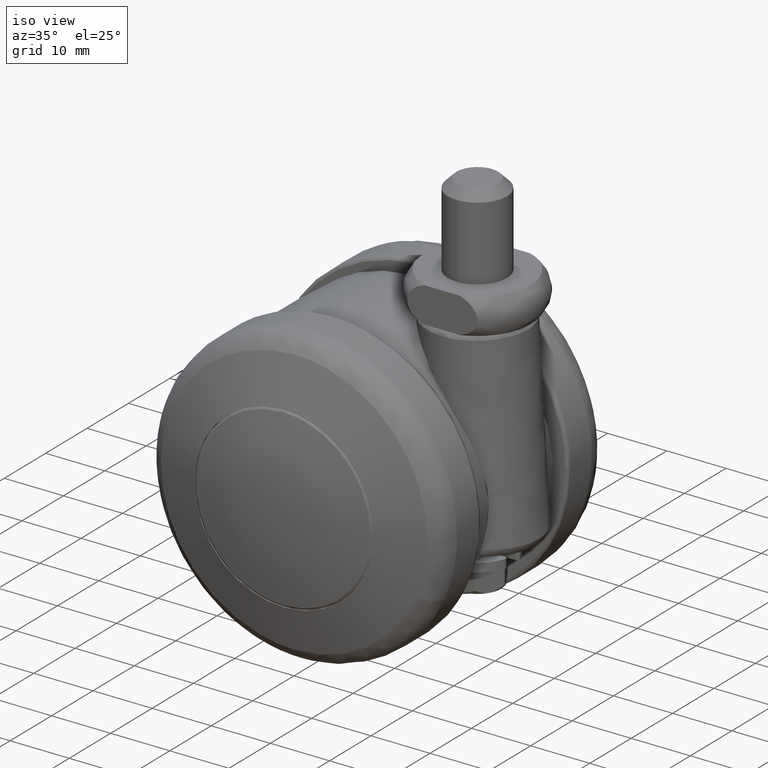
[diagram: clean part render]
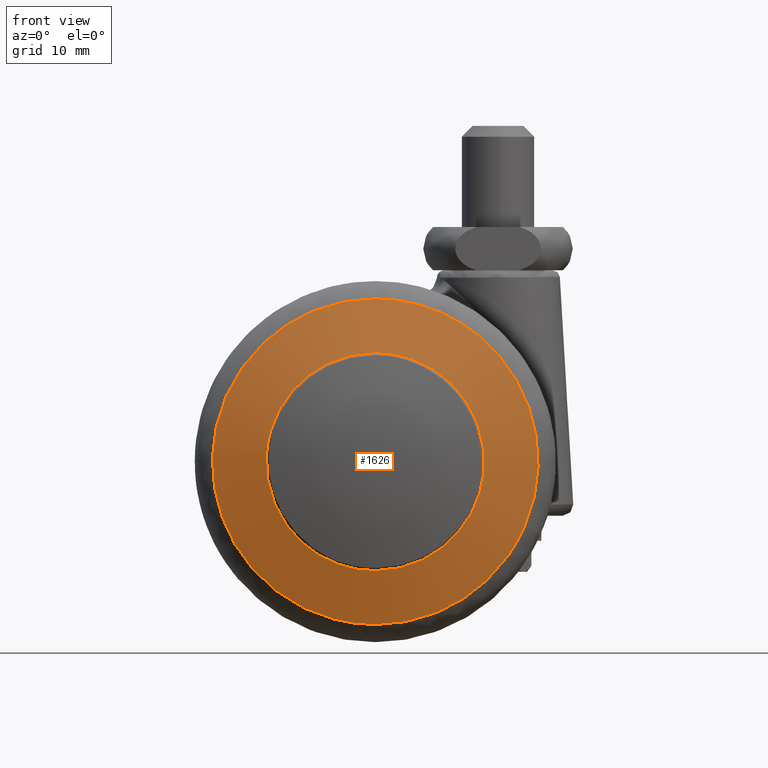
[diagram: tour spotlight — one face highlighted and labeled with its STEP entity id]
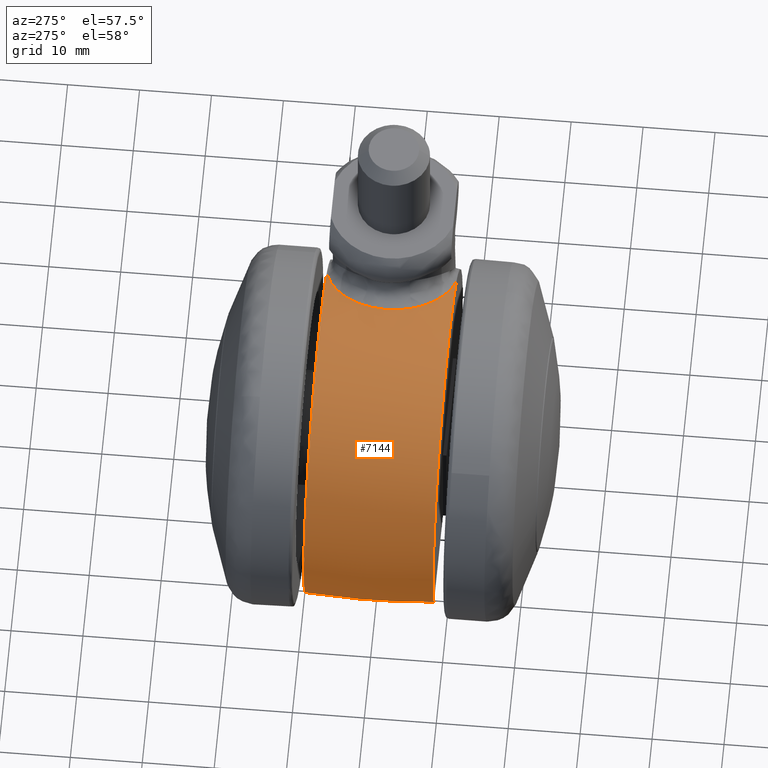
[diagram: tour spotlight — one face highlighted and labeled with its STEP entity id]
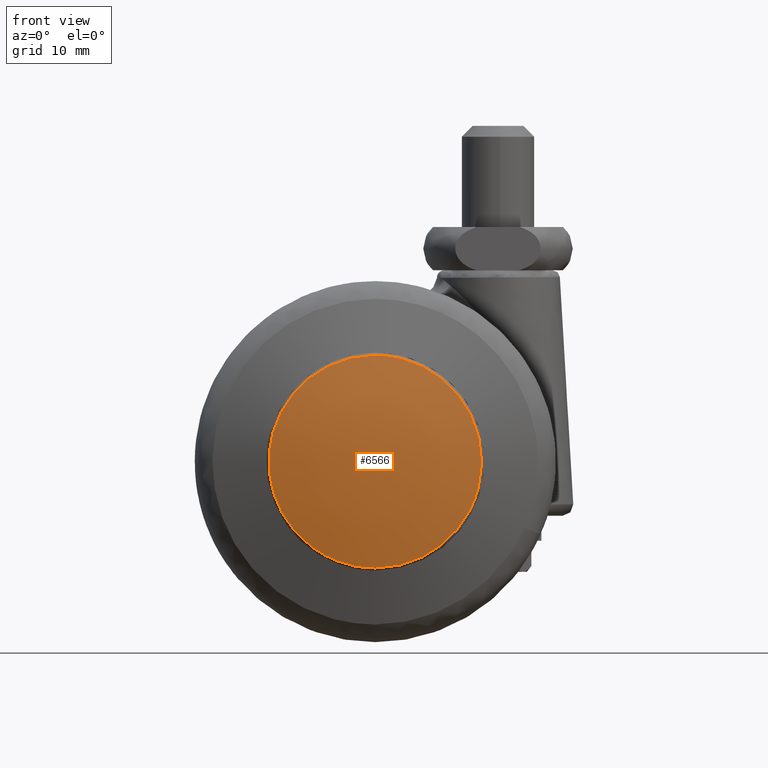
[diagram: tour spotlight — one face highlighted and labeled with its STEP entity id]
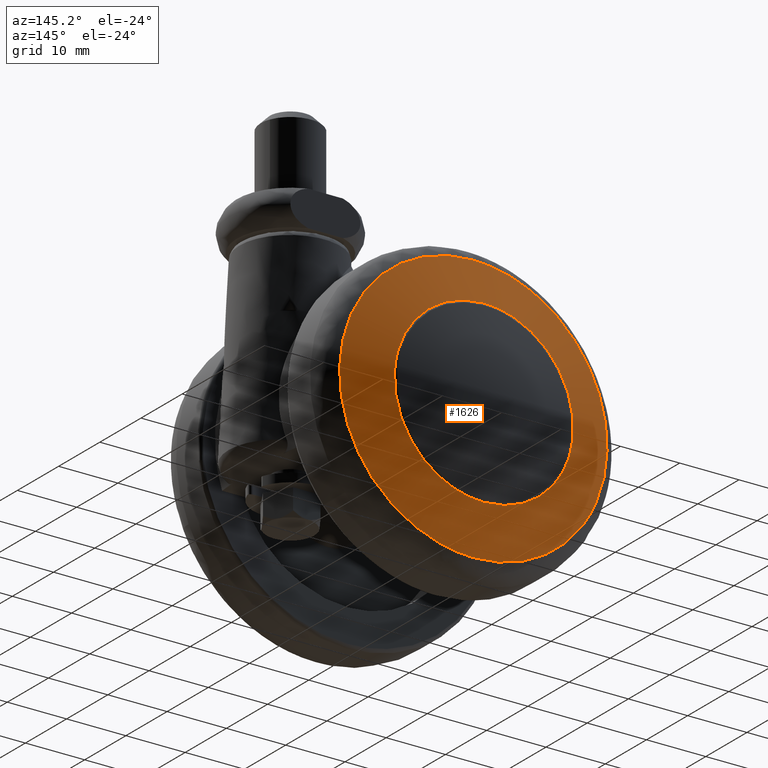
[diagram: tour spotlight — one face highlighted and labeled with its STEP entity id]
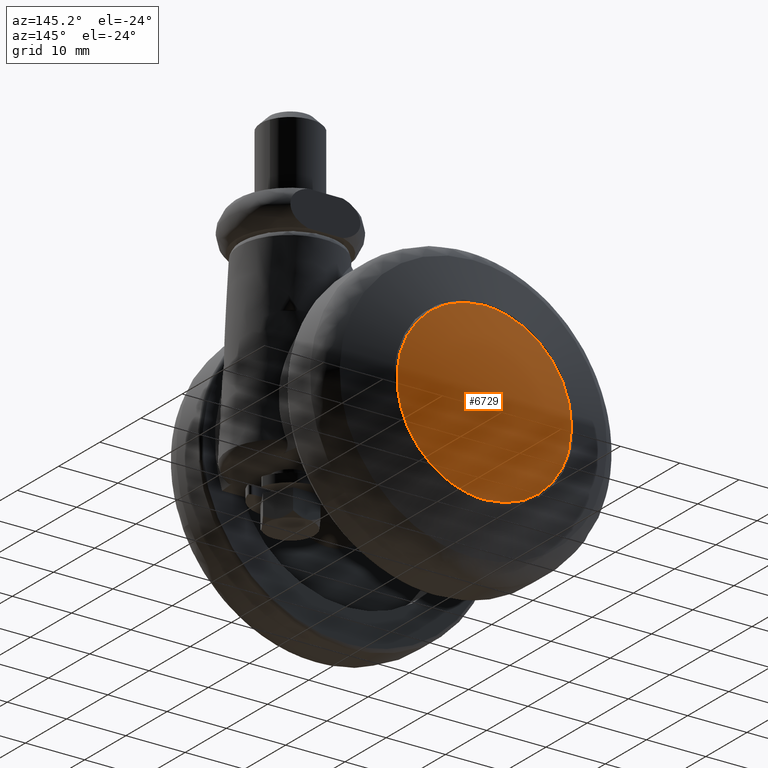
[diagram: tour spotlight — one face highlighted and labeled with its STEP entity id]
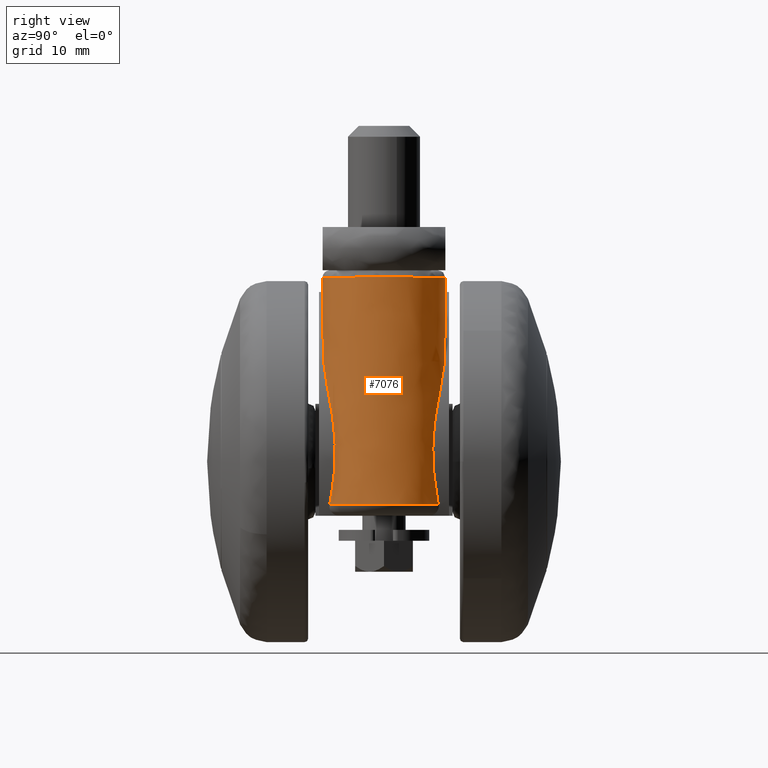
[diagram: tour spotlight — one face highlighted and labeled with its STEP entity id]
A machine part: a face-by-face anatomy tour. The part has 124 B-rep faces; the first image is the clean iso view, then the 6 largest visible faces are spotlighted one at a time (largest first), each with its STEP entity span.

Face 1 — front view, entity #1626. In plain terms, the highlighted face is a freeform B-spline surface patch.
Definition (entity closure, byte-faithful):
#671=CARTESIAN_POINT('',(14.994446135850531,-22.500000000000000,-1.782297696430476));
#672=VERTEX_POINT('',#671);
#678=CARTESIAN_POINT('',(0.0,-22.500000000000000,15.100000000000000));
#679=VERTEX_POINT('',#678);
#680=CARTESIAN_POINT('',(14.994446135850534,-22.499999999999996,-1.782297696430475));
#681=CARTESIAN_POINT('',(15.099999999999998,-22.499999999999996,-0.894274481564592));
#682=CARTESIAN_POINT('',(15.100000000000000,-22.500000000000000,1.789254E-015));
#683=CARTESIAN_POINT('',(15.100000000000005,-22.500000000000004,15.100000000000005));
#684=CARTESIAN_POINT('',(0.0,-22.500000000000000,15.100000000000000));
#692=(BOUNDED_CURVE()B_SPLINE_CURVE(2,(#680,#681,#682,#683,#684),.UNSPECIFIED.,.F.,.U.)B_SPLINE_CURVE_WITH_KNOTS((3,2,3),(0.229562690448439,0.250000000000000,0.500000000000000),.UNSPECIFIED.)CURVE()GEOMETRIC_REPRESENTATION_ITEM()RATIONAL_B_SPLINE_CURVE((0.956027179385483,0.976056202486226,1.0,0.707106781186547,1.0))REPRESENTATION_ITEM(''));
#693=EDGE_CURVE('',#672,#679,#692,.T.);
#695=CARTESIAN_POINT('',(-15.071836945563520,-22.500000000000000,0.921808594965005));
#696=VERTEX_POINT('',#695);
#697=CARTESIAN_POINT('',(0.0,-22.500000000000000,15.100000000000000));
#698=CARTESIAN_POINT('',(-14.204684604072089,-22.500000000000007,15.100000000000003));
#699=CARTESIAN_POINT('',(-15.071836945563517,-22.499999999999996,0.921808594965005));
#707=(BOUNDED_CURVE()B_SPLINE_CURVE(2,(#697,#698,#699),.UNSPECIFIED.,.F.,.U.)B_SPLINE_CURVE_WITH_KNOTS((3,3),(0.500000000000000,0.739333241030990),.UNSPECIFIED.)CURVE()GEOMETRIC_REPRESENTATION_ITEM()RATIONAL_B_SPLINE_CURVE((1.0,0.719603666661510,0.976072639171872))REPRESENTATION_ITEM(''));
#708=EDGE_CURVE('',#679,#696,#707,.T.);
#782=CARTESIAN_POINT('',(0.0,-22.500000000000000,-15.100000000000000));
#783=VERTEX_POINT('',#782);
#784=CARTESIAN_POINT('',(-15.071836945563517,-22.499999999999996,0.921808594965005));
#785=CARTESIAN_POINT('',(-15.100000000000000,-22.499999999999996,0.461334515664197));
#786=CARTESIAN_POINT('',(-15.100000000000000,-22.500000000000000,1.789254E-015));
#787=CARTESIAN_POINT('',(-15.100000000000005,-22.500000000000004,-15.100000000000005));
#788=CARTESIAN_POINT('',(0.0,-22.500000000000000,-15.100000000000000));
#796=(BOUNDED_CURVE()B_SPLINE_CURVE(2,(#784,#785,#786,#787,#788),.UNSPECIFIED.,.F.,.U.)B_SPLINE_CURVE_WITH_KNOTS((3,2,3),(0.739333241030990,0.750000000000000,1.0),.UNSPECIFIED.)CURVE()GEOMETRIC_REPRESENTATION_ITEM()RATIONAL_B_SPLINE_CURVE((0.976072639171872,0.987503114525037,1.0,0.707106781186547,1.0))REPRESENTATION_ITEM(''));
#797=EDGE_CURVE('',#696,#783,#796,.T.);
#799=CARTESIAN_POINT('',(0.0,-22.500000000000000,-15.100000000000000));
#800=CARTESIAN_POINT('',(13.411452677995506,-22.500000000000007,-15.100000000000005));
#801=CARTESIAN_POINT('',(14.994446135850534,-22.499999999999996,-1.782297696430475));
#809=(BOUNDED_CURVE()B_SPLINE_CURVE(2,(#799,#800,#801),.UNSPECIFIED.,.F.,.U.)B_SPLINE_CURVE_WITH_KNOTS((3,3),(0.0,0.229562690448439),.UNSPECIFIED.)CURVE()GEOMETRIC_REPRESENTATION_ITEM()RATIONAL_B_SPLINE_CURVE((1.0,0.731050578700322,0.956027179385483))REPRESENTATION_ITEM(''));
#810=EDGE_CURVE('',#783,#672,#809,.T.);
#1243=CARTESIAN_POINT('',(9.087749509929518,-19.934754244706831,20.643707274505701));
#1244=VERTEX_POINT('',#1243);
#1245=CARTESIAN_POINT('',(0.0,-19.934754434471500,22.555483695890050));
#1246=VERTEX_POINT('',#1245);
#1247=CARTESIAN_POINT('',(9.087749509929518,-19.934754244706827,20.643707274505697));
#1248=CARTESIAN_POINT('',(4.744963543888343,-19.934754434471508,22.555483695890050));
#1249=CARTESIAN_POINT('',(0.0,-19.934754434471500,22.555483695890050));
#1257=(BOUNDED_CURVE()B_SPLINE_CURVE(2,(#1247,#1248,#1249),.UNSPECIFIED.,.F.,.U.)B_SPLINE_CURVE_WITH_KNOTS((3,3),(0.431585009860542,0.500000000000000),.UNSPECIFIED.)CURVE()GEOMETRIC_REPRESENTATION_ITEM()RATIONAL_B_SPLINE_CURVE((0.883563120517182,0.919846853291854,1.0))REPRESENTATION_ITEM(''));
#1258=EDGE_CURVE('',#1244,#1246,#1257,.T.);
#1278=CARTESIAN_POINT('',(20.643707274505690,-19.934754244706831,-9.087749509929516));
#1279=VERTEX_POINT('',#1278);
#1293=CARTESIAN_POINT('',(0.0,-19.934754434471500,-22.555483695890040));
#1294=VERTEX_POINT('',#1293);
#1295=CARTESIAN_POINT('',(0.0,-19.934754434471500,-22.555483695890040));
#1296=CARTESIAN_POINT('',(14.714956622339063,-19.934754434471497,-22.555483695890043));
#1297=CARTESIAN_POINT('',(20.643707274505697,-19.934754244706827,-9.087749509929516));
#1305=(BOUNDED_CURVE()B_SPLINE_CURVE(2,(#1295,#1296,#1297),.UNSPECIFIED.,.F.,.U.)B_SPLINE_CURVE_WITH_KNOTS((3,3),(0.0,0.181585009860541),.UNSPECIFIED.)CURVE()GEOMETRIC_REPRESENTATION_ITEM()RATIONAL_B_SPLINE_CURVE((1.0,0.787259927894694,0.883563120517182))REPRESENTATION_ITEM(''));
#1306=EDGE_CURVE('',#1294,#1279,#1305,.T.);
#1308=CARTESIAN_POINT('',(0.0,-19.934754434471500,22.555483695890050));
#1309=CARTESIAN_POINT('',(-22.555483695890047,-19.934754434471508,22.555483695890047));
#1310=CARTESIAN_POINT('',(-22.555483695890050,-19.934754434471500,1.789254E-015));
#1311=CARTESIAN_POINT('',(-22.555483695890047,-19.934754434471508,-22.555483695890047));
#1312=CARTESIAN_POINT('',(0.0,-19.934754434471500,-22.555483695890040));
#1320=(BOUNDED_CURVE()B_SPLINE_CURVE(2,(#1308,#1309,#1310,#1311,#1312),.UNSPECIFIED.,.F.,.U.)B_SPLINE_CURVE_WITH_KNOTS((3,2,3),(0.500000000000000,0.750000000000000,1.0),.UNSPECIFIED.)CURVE()GEOMETRIC_REPRESENTATION_ITEM()RATIONAL_B_SPLINE_CURVE((1.0,0.707106781186547,1.0,0.707106781186547,1.0))REPRESENTATION_ITEM(''));
#1321=EDGE_CURVE('',#1246,#1294,#1320,.T.);
#1343=CARTESIAN_POINT('',(20.643707274505697,-19.934754244706827,-9.087749509929516));
#1344=CARTESIAN_POINT('',(22.555483695890050,-19.934754434471508,-4.744963543888342));
#1345=CARTESIAN_POINT('',(22.555483695890050,-19.934754434471500,1.789254E-015));
#1346=CARTESIAN_POINT('',(22.555483695890040,-19.934754434471504,14.714956622339097));
#1347=CARTESIAN_POINT('',(9.087749509929518,-19.934754244706831,20.643707274505704));
#1355=(BOUNDED_CURVE()B_SPLINE_CURVE(2,(#1343,#1344,#1345,#1346,#1347),.UNSPECIFIED.,.F.,.U.)B_SPLINE_CURVE_WITH_KNOTS((3,2,3),(0.181585009860542,0.250000000000000,0.431585009860542),.UNSPECIFIED.)CURVE()GEOMETRIC_REPRESENTATION_ITEM()RATIONAL_B_SPLINE_CURVE((0.883563120517182,0.919846853291854,1.0,0.787259927894694,0.883563120517183))REPRESENTATION_ITEM(''));
#1356=EDGE_CURVE('',#1279,#1244,#1355,.T.);
#1590=CARTESIAN_POINT('',(-23.496149942089705,-14.038550127731490,-23.496159194671790));
#1591=CARTESIAN_POINT('',(-12.302814989209493,-19.022279892763255,-24.605639667904818));
#1592=CARTESIAN_POINT('',(12.302718326948122,-19.022279892763233,-24.605639667904818));
#1593=CARTESIAN_POINT('',(23.495981982561212,-14.038624909848737,-23.496175842705028));
#1594=CARTESIAN_POINT('',(-24.605630893487540,-19.022284003206046,-12.302820291486842));
#1595=CARTESIAN_POINT('',(-12.912541177236481,-24.500000000000000,-12.912546262084330));
#1596=CARTESIAN_POINT('',(12.912439724403830,-24.499999999999972,-12.912546262084330));
#1597=CARTESIAN_POINT('',(24.605455826190866,-19.022366014444689,-12.302829420178824));
#1598=CARTESIAN_POINT('',(-24.605630893487540,-19.022284003206046,12.302820621074964));
#1599=CARTESIAN_POINT('',(-12.912541177236481,-24.500000000000000,12.912546608006791));
#1600=CARTESIAN_POINT('',(12.912439724403830,-24.499999999999979,12.912546608006791));
#1601=CARTESIAN_POINT('',(24.605455826190866,-19.022366014444689,12.302829749767190));
#1602=CARTESIAN_POINT('',(-23.496149885324918,-14.038549872746909,23.496159767360616));
#1603=CARTESIAN_POINT('',(-12.302814958083411,-19.022279613129580,24.605640264828839));
#1604=CARTESIAN_POINT('',(12.302718295822286,-19.022279613129559,24.605640264828839));
#1605=CARTESIAN_POINT('',(23.495981925796809,-14.038624654863803,23.496176415394217));
#1613=(BOUNDED_SURFACE()B_SPLINE_SURFACE(2,2,((#1590,#1594,#1598,#1602),(#1591,#1595,#1599,#1603),(#1592,#1596,#1600,#1604),(#1593,#1597,#1601,#1605)),.UNSPECIFIED.,.F.,.F.,.U.)B_SPLINE_SURFACE_WITH_KNOTS((3,1,3),(3,1,3),(9.129814129447937,33.807220128434842,58.484432238960267),(9.129804411697387,33.807220128434842,58.484636506271357),.UNSPECIFIED.)GEOMETRIC_REPRESENTATION_ITEM()RATIONAL_B_SPLINE_SURFACE(((1.099119745921070,1.049559853444287,1.049559853444287,1.099119748576454),(1.049559892476784,1.0,1.0,1.049559895132167),(1.049559892476784,1.0,1.0,1.049559895132167),(1.099118967148295,1.049559074671511,1.049559074671511,1.099118969803678)))REPRESENTATION_ITEM('')SURFACE());
#1614=ORIENTED_EDGE('',*,*,#1306,.T.);
#1615=ORIENTED_EDGE('',*,*,#1356,.T.);
#1616=ORIENTED_EDGE('',*,*,#1258,.T.);
#1617=ORIENTED_EDGE('',*,*,#1321,.T.);
#1618=EDGE_LOOP('',(#1614,#1615,#1616,#1617));
#1619=FACE_OUTER_BOUND('',#1618,.T.);
#1620=ORIENTED_EDGE('',*,*,#708,.F.);
#1621=ORIENTED_EDGE('',*,*,#693,.F.);
#1622=ORIENTED_EDGE('',*,*,#810,.F.);
#1623=ORIENTED_EDGE('',*,*,#797,.F.);
#1624=EDGE_LOOP('',(#1620,#1621,#1622,#1623));
#1625=FACE_BOUND('',#1624,.T.);
#1626=ADVANCED_FACE('',(#1619,#1625),#1613,.T.);

Face 2 — auxiliary view, entity #7144. In plain terms, the highlighted face is a freeform B-spline surface patch.
Definition (entity closure, byte-faithful):
#5630=CARTESIAN_POINT('',(13.588231695146179,9.0,19.173156694149551));
#5631=VERTEX_POINT('',#5630);
#5746=CARTESIAN_POINT('',(6.219993507327210,3.692938383415840,23.011809311680100));
#5747=VERTEX_POINT('',#5746);
#5784=CARTESIAN_POINT('',(6.219993507327210,3.692938383415840,23.011809311680100));
#5785=CARTESIAN_POINT('',(6.278624935757117,3.823225182682476,22.990682837458898));
#5786=CARTESIAN_POINT('',(6.395223366603417,4.082322338615454,22.948669299507088));
#5787=CARTESIAN_POINT('',(6.590205561343025,4.457431674735847,22.876623073130759));
#5788=CARTESIAN_POINT('',(6.798374180556531,4.819331666933396,22.798166385493751));
#5789=CARTESIAN_POINT('',(7.021063800761381,5.167271448499734,22.712394392818130));
#5790=CARTESIAN_POINT('',(7.257711787003527,5.501444362847999,22.619183165476720));
#5791=CARTESIAN_POINT('',(7.508235546352675,5.821795078575351,22.518161493786270));
#5792=CARTESIAN_POINT('',(7.772401600434760,6.128336119822137,22.408984034620790));
#5793=CARTESIAN_POINT('',(8.049992775707091,6.421063210355301,22.291259247503220));
#5794=CARTESIAN_POINT('',(8.340760593323369,6.699980830973473,22.164570080387321));
#5795=CARTESIAN_POINT('',(8.644443772550023,6.965084862768402,22.028466740243850));
#5796=CARTESIAN_POINT('',(8.960735351472680,7.216407088599175,21.882479139953450));
#5797=CARTESIAN_POINT('',(9.289390294511284,7.453851827909706,21.726078283403840));
#5798=CARTESIAN_POINT('',(9.748256556189610,7.755737851419884,21.500633564368641));
#5799=CARTESIAN_POINT('',(10.353411805418480,8.094328146188836,21.188679494721189));
#5800=CARTESIAN_POINT('',(11.117555037187261,8.429225841587490,20.767323054136309));
#5801=CARTESIAN_POINT('',(11.916697299187200,8.693052936205529,20.293093224124028));
#5802=CARTESIAN_POINT('',(12.748490270358939,8.891612364255032,19.764135803318130));
#5803=CARTESIAN_POINT('',(13.304198173082510,8.963339045782341,19.373049033491672));
#5804=CARTESIAN_POINT('',(13.588231695146179,9.0,19.173156694149551));
#5805=B_SPLINE_CURVE_WITH_KNOTS('',3,(#5784,#5785,#5786,#5787,#5788,#5789,#5790,#5791,#5792,#5793,#5794,#5795,#5796,#5797,#5798,#5799,#5800,#5801,#5802,#5803,#5804),.UNSPECIFIED.,.F.,.U.,(4,1,1,1,1,1,1,1,1,1,1,1,1,1,1,1,1,1,4),(0.0,0.041725974252428,0.082979099326952,0.123852435229087,0.164441336862084,0.204842872980680,0.245155188974324,0.285476833527948,0.325906072281352,0.366540212856249,0.407474964855436,0.448803855765919,0.490617719491048,0.533004269058387,0.620319770104614,0.709952416947242,0.802660437895247,0.899135767923390,1.000000000000000),.UNSPECIFIED.);
#5806=EDGE_CURVE('',#5747,#5631,#5805,.T.);
#5869=CARTESIAN_POINT('',(6.215744114371440,-3.673296328291225,23.013707355271450));
#5870=VERTEX_POINT('',#5869);
#5887=CARTESIAN_POINT('',(6.215744114371440,-3.673296328291225,23.013707355271450));
#5888=CARTESIAN_POINT('',(6.163512965499828,-3.547861069766016,23.032328378675739));
#5889=CARTESIAN_POINT('',(6.059016707753850,-3.296908996368151,23.069582532627649));
#5890=CARTESIAN_POINT('',(5.924626600521748,-2.910068240834645,23.116671524506732));
#5891=CARTESIAN_POINT('',(5.806900146376258,-2.515932255172424,23.157573913241372));
#5892=CARTESIAN_POINT('',(5.707517703319883,-2.113728091255474,23.191828877556851));
#5893=CARTESIAN_POINT('',(5.626131953513815,-1.703679143854897,23.219752072738629));
#5894=CARTESIAN_POINT('',(5.562917634358988,-1.285739684406603,23.241393995349259));
#5895=CARTESIAN_POINT('',(5.517881432313001,-0.859940039510437,23.256821384425141));
#5896=CARTESIAN_POINT('',(5.491057285743191,-0.426277927585193,23.266038503537949));
#5897=CARTESIAN_POINT('',(5.480212286510919,0.128163947591951,23.269779037305959));
#5898=CARTESIAN_POINT('',(5.504832870357054,0.793902638100909,23.261193745784109));
#5899=CARTESIAN_POINT('',(5.592902396780717,1.558507462851361,23.230983660470439));
#5900=CARTESIAN_POINT('',(5.741158364576782,2.297087660404783,23.180041069420010));
#5901=CARTESIAN_POINT('',(5.944090083965008,3.012045779198560,23.109900967692528));
#5902=CARTESIAN_POINT('',(6.128170718133329,3.466332108033121,23.044454972413149));
#5903=CARTESIAN_POINT('',(6.219993507327210,3.692938383415840,23.011809311680100));
#5904=B_SPLINE_CURVE_WITH_KNOTS('',3,(#5887,#5888,#5889,#5890,#5891,#5892,#5893,#5894,#5895,#5896,#5897,#5898,#5899,#5900,#5901,#5902,#5903),.UNSPECIFIED.,.F.,.U.,(4,1,1,1,1,1,1,1,1,1,1,1,1,1,4),(0.0,0.054225332973137,0.108485922541177,0.162915807822060,0.217648352330687,0.272815234545730,0.328545497201007,0.384964685092542,0.442194093982434,0.500350144917826,0.604217026484721,0.705386180330456,0.804568682316268,0.902515222031797,0.999999836281785),.UNSPECIFIED.);
#5905=EDGE_CURVE('',#5870,#5747,#5904,.T.);
#5988=CARTESIAN_POINT('',(13.626917232103301,-8.999999980331229,19.145929981141801));
#5989=VERTEX_POINT('',#5988);
#6029=CARTESIAN_POINT('',(13.626917232103301,-8.999999980331229,19.145929981141801));
#6030=CARTESIAN_POINT('',(13.483174728646519,-8.983397786929727,19.248660035378521));
#6031=CARTESIAN_POINT('',(13.198955482302789,-8.950570593978789,19.451786166410411));
#6032=CARTESIAN_POINT('',(12.772271449658581,-8.878491098380051,19.741343123070909));
#6033=CARTESIAN_POINT('',(12.352578842174690,-8.790215433512142,20.015908931818149));
#6034=CARTESIAN_POINT('',(11.940044040031029,-8.684164614004835,20.275327102081292));
#6035=CARTESIAN_POINT('',(11.535323291601969,-8.560736172977114,20.520443052476079));
#6036=CARTESIAN_POINT('',(11.138898500460840,-8.419813897040656,20.751821981759669));
#6037=CARTESIAN_POINT('',(10.751245994035269,-8.261415052035199,20.970081213076501));
#6038=CARTESIAN_POINT('',(10.372820780613059,-8.085520438070979,21.175793904813890));
#6039=CARTESIAN_POINT('',(10.003972097124720,-7.892126656182612,21.369540100201370));
#6040=CARTESIAN_POINT('',(9.283111071716551,-7.468211968437656,21.735828872534981));
#6041=CARTESIAN_POINT('',(8.258356511719414,-6.688737164876597,22.212309735777460));
#6042=CARTESIAN_POINT('',(7.347427646362947,-5.642800715653374,22.587327032557670));
#6043=CARTESIAN_POINT('',(6.792770815356787,-4.800988921491501,22.801501859457691));
#6044=CARTESIAN_POINT('',(6.479829437251701,-4.251264304528282,22.918468718444970));
#6045=CARTESIAN_POINT('',(6.303845780252374,-3.866112577891753,22.981934735463849));
#6046=CARTESIAN_POINT('',(6.215744114371440,-3.673296328291225,23.013707355271450));
#6047=B_SPLINE_CURVE_WITH_KNOTS('',3,(#6029,#6030,#6031,#6032,#6033,#6034,#6035,#6036,#6037,#6038,#6039,#6040,#6041,#6042,#6043,#6044,#6045,#6046),.UNSPECIFIED.,.F.,.U.,(4,1,1,1,1,1,1,1,1,1,1,1,1,1,1,4),(0.0,0.051005348936090,0.100851880866773,0.149610454805750,0.197356226776257,0.244168706523859,0.290131750760002,0.335333480319933,0.379866109869693,0.423825681291731,0.467311695704187,0.642269694070688,0.815353082418038,0.876968644372549,0.938407534135915,1.0),.UNSPECIFIED.);
#6048=EDGE_CURVE('',#5989,#5870,#6047,.T.);
#6909=CARTESIAN_POINT('',(-22.271056962330899,-9.0,-7.500000000000000));
#6910=VERTEX_POINT('',#6909);
#6911=CARTESIAN_POINT('',(-22.271056962330899,-9.0,-7.500000000000000));
#6912=CARTESIAN_POINT('',(-27.722733947601537,-8.999999997680916,8.688675133406269));
#6913=CARTESIAN_POINT('',(-14.006368000823530,-8.999999990165614,18.869899417372441));
#6914=CARTESIAN_POINT('',(-0.290002054045531,-8.999999982650314,29.051123701338629));
#6915=CARTESIAN_POINT('',(13.626917232103301,-8.999999980331229,19.145929981141801));
#6923=(BOUNDED_CURVE()B_SPLINE_CURVE(2,(#6911,#6912,#6913,#6914,#6915),.UNSPECIFIED.,.F.,.U.)B_SPLINE_CURVE_WITH_KNOTS((3,2,3),(0.0,0.500000000000000,1.0),.UNSPECIFIED.)CURVE()GEOMETRIC_REPRESENTATION_ITEM()RATIONAL_B_SPLINE_CURVE((1.0,0.808882506531621,1.0,0.808882506531621,1.0))REPRESENTATION_ITEM(''));
#6924=EDGE_CURVE('',#6910,#5989,#6923,.T.);
#6940=CARTESIAN_POINT('',(-22.271056962330899,9.0,-7.500000000000000));
#6941=VERTEX_POINT('',#6940);
#6947=CARTESIAN_POINT('',(-22.271056962330888,9.0,-7.500000000000004));
#6948=CARTESIAN_POINT('',(-27.716981276559199,9.0,8.671532081962837));
#6949=CARTESIAN_POINT('',(-14.025412138785050,9.0,18.855709813120480));
#6950=CARTESIAN_POINT('',(-0.333843001010914,9.0,29.039887544278116));
#6951=CARTESIAN_POINT('',(13.588231695146179,9.0,19.173156694149551));
#6959=(BOUNDED_CURVE()B_SPLINE_CURVE(2,(#6947,#6948,#6949,#6950,#6951),.UNSPECIFIED.,.F.,.U.)B_SPLINE_CURVE_WITH_KNOTS((3,2,3),(0.0,0.500000000000000,1.0),.UNSPECIFIED.)CURVE()GEOMETRIC_REPRESENTATION_ITEM()RATIONAL_B_SPLINE_CURVE((1.0,0.809178299804896,1.0,0.809178299804896,1.0))REPRESENTATION_ITEM(''));
#6960=EDGE_CURVE('',#6941,#5631,#6959,.T.);
#7007=CARTESIAN_POINT('',(-22.271056962330899,9.0,-7.500000000000000));
#7008=CARTESIAN_POINT('',(-22.326246436391131,8.421113523567511,-7.500000000000000));
#7009=CARTESIAN_POINT('',(-22.376107840399680,7.841567522138998,-7.500000000000000));
#7010=CARTESIAN_POINT('',(-22.607889066678592,4.822462405177966,-7.500000000000000));
#7011=CARTESIAN_POINT('',(-22.701146241926342,2.371928352875127,-7.499999999999999));
#7012=CARTESIAN_POINT('',(-22.697628886571451,-1.321623607242038,-7.499999999999997));
#7013=CARTESIAN_POINT('',(-22.672520384214948,-2.555770472345564,-7.500000000000002));
#7014=CARTESIAN_POINT('',(-22.610680921234270,-4.102223723649644,-7.499999999999999));
#7015=CARTESIAN_POINT('',(-22.596786909220739,-4.411712442788734,-7.500000000000001));
#7016=CARTESIAN_POINT('',(-22.566012359647061,-5.029699530149097,-7.499999999999998));
#7017=CARTESIAN_POINT('',(-22.515351681856671,-5.955708155191383,-7.500000000000001));
#7018=CARTESIAN_POINT('',(-22.451252646681070,-6.878813337347844,-7.500000000000000));
#7019=CARTESIAN_POINT('',(-22.362715623734921,-7.996148128712547,-7.500000000000000));
#7020=CARTESIAN_POINT('',(-22.318867952421201,-8.498502214515414,-7.500000000000000));
#7021=CARTESIAN_POINT('',(-22.271056962330899,-9.0,-7.500000000000000));
#7022=B_SPLINE_CURVE_WITH_KNOTS('',3,(#7007,#7008,#7009,#7010,#7011,#7012,#7013,#7014,#7015,#7016,#7017,#7018,#7019,#7020,#7021),.UNSPECIFIED.,.F.,.U.,(4,2,2,2,2,1,2,4),(0.461315755579124,0.468749999999992,0.499999999999991,0.515624999999991,0.519531249999991,0.523437499999991,0.531249999999991,0.537651572681553),.UNSPECIFIED.);
#7023=EDGE_CURVE('',#6941,#6910,#7022,.T.);
#7107=CARTESIAN_POINT('',(-21.333511952159736,9.894889821027570,-9.651268654892149));
#7108=CARTESIAN_POINT('',(-22.229960108585576,0.000002201552477,-10.056821290213062));
#7109=CARTESIAN_POINT('',(-21.333512347162539,-9.894885461032892,-9.651268833591193));
#7110=CARTESIAN_POINT('',(-23.415074607223566,9.894889821027569,-5.050107567280720));
#7111=CARTESIAN_POINT('',(-24.398991390887215,0.000002201552476,-5.262316397622067));
#7112=CARTESIAN_POINT('',(-23.415075040767761,-9.894885461032887,-5.050107660786496));
#7113=CARTESIAN_POINT('',(-23.415074607223566,9.894889821027569,0.0));
#7114=CARTESIAN_POINT('',(-24.398991390887215,0.000002201552475,0.0));
#7115=CARTESIAN_POINT('',(-23.415075040767753,-9.894885461032891,0.0));
#7116=CARTESIAN_POINT('',(-23.415074607223563,9.894889821027572,23.415074607223563));
#7117=CARTESIAN_POINT('',(-24.398991390887208,0.000002201552479,24.398991390887225));
#7118=CARTESIAN_POINT('',(-23.415075040767746,-9.894885461032889,23.415075040767764));
#7119=CARTESIAN_POINT('',(0.0,9.894889821027569,23.415074607223566));
#7120=CARTESIAN_POINT('',(0.0,0.000002201552475,24.398991390887215));
#7121=CARTESIAN_POINT('',(0.0,-9.894885461032891,23.415075040767753));
#7122=CARTESIAN_POINT('',(8.362800914564645,9.894889821027570,23.415074607223566));
#7123=CARTESIAN_POINT('',(8.714211290841618,0.000002201552477,24.398991390887211));
#7124=CARTESIAN_POINT('',(8.362801069406931,-9.894885461032891,23.415075040767750));
#7125=CARTESIAN_POINT('',(14.833455353721023,9.894889821027572,18.117238231336795));
#7126=CARTESIAN_POINT('',(15.456766871069286,0.000002201552477,18.878536457734310));
#7127=CARTESIAN_POINT('',(14.833455628371363,-9.894885461032894,18.117238566788352));
#7135=(BOUNDED_SURFACE()B_SPLINE_SURFACE(2,2,((#7107,#7110,#7113,#7116,#7119,#7122,#7125),(#7108,#7111,#7114,#7117,#7120,#7123,#7126),(#7109,#7112,#7115,#7118,#7121,#7124,#7127)),.UNSPECIFIED.,.F.,.F.,.U.)B_SPLINE_SURFACE_WITH_KNOTS((3,3),(3,2,2,3),(0.0,19.838453706917559),(0.0,11.090368905838289,50.698833331000927,68.126557678072501),.UNSPECIFIED.)GEOMETRIC_REPRESENTATION_ITEM()RATIONAL_B_SPLINE_SURFACE(((0.778402080064648,0.810251534126535,0.882636647581030,0.624118358828307,0.882636647581030,0.768888600529832,0.755238834883688),(0.774582085213147,0.806275238625722,0.878305123377978,0.621055508691456,0.878305123377978,0.765115292915909,0.751532513260460),(0.778402078373139,0.810251532365816,0.882636645663014,0.624118357472065,0.882636645663014,0.768888598858996,0.755238833242514)))REPRESENTATION_ITEM('')SURFACE());
#7136=ORIENTED_EDGE('',*,*,#6924,.T.);
#7137=ORIENTED_EDGE('',*,*,#6048,.T.);
#7138=ORIENTED_EDGE('',*,*,#5905,.T.);
#7139=ORIENTED_EDGE('',*,*,#5806,.T.);
#7140=ORIENTED_EDGE('',*,*,#6960,.F.);
#7141=ORIENTED_EDGE('',*,*,#7023,.T.);
#7142=EDGE_LOOP('',(#7136,#7137,#7138,#7139,#7140,#7141));
#7143=FACE_OUTER_BOUND('',#7142,.T.);
#7144=ADVANCED_FACE('',(#7143),#7135,.T.);

Face 3 — front view, entity #6566. In plain terms, the highlighted face is a freeform B-spline surface patch.
Definition (entity closure, byte-faithful):
#4679=CARTESIAN_POINT('',(-5.284961762477772,-22.599255053788429,-13.745990881121701));
#4680=VERTEX_POINT('',#4679);
#4694=CARTESIAN_POINT('',(0.0,-22.599255056601049,14.726951002130299));
#4695=VERTEX_POINT('',#4694);
#4696=CARTESIAN_POINT('',(0.0,-22.599255056601049,14.726951002130299));
#4697=CARTESIAN_POINT('',(-14.726951002130306,-22.599255056601042,14.726951002130306));
#4698=CARTESIAN_POINT('',(-14.726951002130299,-22.599255056601049,2.621149E-016));
#4699=CARTESIAN_POINT('',(-14.726951002130308,-22.599255056601052,-10.115801345584272));
#4700=CARTESIAN_POINT('',(-5.284961762477772,-22.599255053788429,-13.745990881121694));
#4708=(BOUNDED_CURVE()B_SPLINE_CURVE(2,(#4696,#4697,#4698,#4699,#4700),.UNSPECIFIED.,.F.,.U.)B_SPLINE_CURVE_WITH_KNOTS((3,2,3),(0.0,0.250000000000000,0.439060941088176),.UNSPECIFIED.)CURVE()GEOMETRIC_REPRESENTATION_ITEM()RATIONAL_B_SPLINE_CURVE((1.0,0.707106781186547,1.0,0.778501329651134,0.892016635829758))REPRESENTATION_ITEM(''));
#4709=EDGE_CURVE('',#4695,#4680,#4708,.T.);
#4711=CARTESIAN_POINT('',(14.264276771226990,-22.599255052302421,-3.662443787323158));
#4712=VERTEX_POINT('',#4711);
#4713=CARTESIAN_POINT('',(14.264276771226987,-22.599255052302414,-3.662443787323158));
#4714=CARTESIAN_POINT('',(14.726951002130299,-22.599255056601049,-1.860446566766187));
#4715=CARTESIAN_POINT('',(14.726951002130299,-22.599255056601049,2.621149E-016));
#4716=CARTESIAN_POINT('',(14.726951002130306,-22.599255056601042,14.726951002130306));
#4717=CARTESIAN_POINT('',(0.0,-22.599255056601049,14.726951002130299));
#4725=(BOUNDED_CURVE()B_SPLINE_CURVE(2,(#4713,#4714,#4715,#4716,#4717),.UNSPECIFIED.,.F.,.U.)B_SPLINE_CURVE_WITH_KNOTS((3,2,3),(0.707556761751167,0.750000000000000,1.0),.UNSPECIFIED.)CURVE()GEOMETRIC_REPRESENTATION_ITEM()RATIONAL_B_SPLINE_CURVE((0.917433344545321,0.950274653329733,1.0,0.707106781186547,1.0))REPRESENTATION_ITEM(''));
#4726=EDGE_CURVE('',#4712,#4695,#4725,.T.);
#4777=CARTESIAN_POINT('',(0.0,-22.599255056601049,-14.726951002130299));
#4778=VERTEX_POINT('',#4777);
#4779=CARTESIAN_POINT('',(0.0,-22.599255056601049,-14.726951002130299));
#4780=CARTESIAN_POINT('',(11.423394152172849,-22.599255056601052,-14.726951002130299));
#4781=CARTESIAN_POINT('',(14.264276771226990,-22.599255052302418,-3.662443787323158));
#4789=(BOUNDED_CURVE()B_SPLINE_CURVE(2,(#4779,#4780,#4781),.UNSPECIFIED.,.F.,.U.)B_SPLINE_CURVE_WITH_KNOTS((3,3),(0.500000000000000,0.707556761751166),.UNSPECIFIED.)CURVE()GEOMETRIC_REPRESENTATION_ITEM()RATIONAL_B_SPLINE_CURVE((1.0,0.756832127856816,0.917433344545320))REPRESENTATION_ITEM(''));
#4790=EDGE_CURVE('',#4778,#4712,#4789,.T.);
#4792=CARTESIAN_POINT('',(-5.284961762477772,-22.599255053788426,-13.745990881121697));
#4793=CARTESIAN_POINT('',(-2.733520590027972,-22.599255056601052,-14.726951002130303));
#4794=CARTESIAN_POINT('',(0.0,-22.599255056601049,-14.726951002130299));
#4802=(BOUNDED_CURVE()B_SPLINE_CURVE(2,(#4792,#4793,#4794),.UNSPECIFIED.,.F.,.U.)B_SPLINE_CURVE_WITH_KNOTS((3,3),(0.439060941088176,0.500000000000000),.UNSPECIFIED.)CURVE()GEOMETRIC_REPRESENTATION_ITEM()RATIONAL_B_SPLINE_CURVE((0.892016635829758,0.928605451535413,1.0))REPRESENTATION_ITEM(''));
#4803=EDGE_CURVE('',#4680,#4778,#4802,.T.);
#6536=CARTESIAN_POINT('',(-15.829935877580565,-20.005583176011271,-15.829976980107825));
#6537=CARTESIAN_POINT('',(-8.071322375609094,-22.208393669579205,-16.142686665695969));
#6538=CARTESIAN_POINT('',(8.071072934921457,-22.208393669579205,-16.142686665695969));
#6539=CARTESIAN_POINT('',(15.829465613322894,-20.005716690380716,-15.829995933729403));
#6540=CARTESIAN_POINT('',(-16.142646407200562,-22.208405334791451,-8.071344160841335));
#6541=CARTESIAN_POINT('',(-8.233979498520736,-24.499999999999989,-8.234000878099863));
#6542=CARTESIAN_POINT('',(8.233725030985857,-24.499999999999989,-8.234000878099863));
#6543=CARTESIAN_POINT('',(16.142167234966230,-22.208544176252705,-8.071354015767531));
#6544=CARTESIAN_POINT('',(-16.142646407200562,-22.208405334791451,8.071344046578160));
#6545=CARTESIAN_POINT('',(-8.233979498520736,-24.499999999999989,8.234000761534015));
#6546=CARTESIAN_POINT('',(8.233725030985857,-24.499999999999989,8.234000761534015));
#6547=CARTESIAN_POINT('',(16.142167234966230,-22.208544176252705,8.071353901504217));
#6548=CARTESIAN_POINT('',(-15.829935886262920,-20.005583237172235,15.829976764690803));
#6549=CARTESIAN_POINT('',(-8.071322380123480,-22.208393733180419,16.142686446198443));
#6550=CARTESIAN_POINT('',(8.071072939435702,-22.208393733180419,16.142686446198443));
#6551=CARTESIAN_POINT('',(15.829465622004996,-20.005716751541812,15.829995718312130));
#6559=(BOUNDED_SURFACE()B_SPLINE_SURFACE(2,2,((#6536,#6540,#6544,#6548),(#6537,#6541,#6545,#6549),(#6538,#6542,#6546,#6550),(#6539,#6543,#6547,#6551)),.UNSPECIFIED.,.F.,.F.,.U.)B_SPLINE_SURFACE_WITH_KNOTS((3,1,3),(3,1,3),(13.222776441240310,29.153157823789741,45.083046884870527),(13.222735077905661,29.153157823789741,45.083580344152452),.UNSPECIFIED.)GEOMETRIC_REPRESENTATION_ITEM()RATIONAL_B_SPLINE_SURFACE(((1.040304845477264,1.020152370412808,1.020152370412808,1.040304844906681),(1.020152475064455,1.0,1.0,1.020152474493872),(1.020152475064455,1.0,1.0,1.020152474493872),(1.040303599896125,1.020151124831670,1.020151124831670,1.040303599325542)))REPRESENTATION_ITEM('')SURFACE());
#6560=ORIENTED_EDGE('',*,*,#4709,.T.);
#6561=ORIENTED_EDGE('',*,*,#4803,.T.);
#6562=ORIENTED_EDGE('',*,*,#4790,.T.);
#6563=ORIENTED_EDGE('',*,*,#4726,.T.);
#6564=EDGE_LOOP('',(#6560,#6561,#6562,#6563));
#6565=FACE_OUTER_BOUND('',#6564,.T.);
#6566=ADVANCED_FACE('',(#6565),#6559,.T.);

Face 4 — auxiliary view, entity #1626. In plain terms, the highlighted face is a freeform B-spline surface patch.
Definition (entity closure, byte-faithful):
#671=CARTESIAN_POINT('',(14.994446135850531,-22.500000000000000,-1.782297696430476));
#672=VERTEX_POINT('',#671);
#678=CARTESIAN_POINT('',(0.0,-22.500000000000000,15.100000000000000));
#679=VERTEX_POINT('',#678);
#680=CARTESIAN_POINT('',(14.994446135850534,-22.499999999999996,-1.782297696430475));
#681=CARTESIAN_POINT('',(15.099999999999998,-22.499999999999996,-0.894274481564592));
#682=CARTESIAN_POINT('',(15.100000000000000,-22.500000000000000,1.789254E-015));
#683=CARTESIAN_POINT('',(15.100000000000005,-22.500000000000004,15.100000000000005));
#684=CARTESIAN_POINT('',(0.0,-22.500000000000000,15.100000000000000));
#692=(BOUNDED_CURVE()B_SPLINE_CURVE(2,(#680,#681,#682,#683,#684),.UNSPECIFIED.,.F.,.U.)B_SPLINE_CURVE_WITH_KNOTS((3,2,3),(0.229562690448439,0.250000000000000,0.500000000000000),.UNSPECIFIED.)CURVE()GEOMETRIC_REPRESENTATION_ITEM()RATIONAL_B_SPLINE_CURVE((0.956027179385483,0.976056202486226,1.0,0.707106781186547,1.0))REPRESENTATION_ITEM(''));
#693=EDGE_CURVE('',#672,#679,#692,.T.);
#695=CARTESIAN_POINT('',(-15.071836945563520,-22.500000000000000,0.921808594965005));
#696=VERTEX_POINT('',#695);
#697=CARTESIAN_POINT('',(0.0,-22.500000000000000,15.100000000000000));
#698=CARTESIAN_POINT('',(-14.204684604072089,-22.500000000000007,15.100000000000003));
#699=CARTESIAN_POINT('',(-15.071836945563517,-22.499999999999996,0.921808594965005));
#707=(BOUNDED_CURVE()B_SPLINE_CURVE(2,(#697,#698,#699),.UNSPECIFIED.,.F.,.U.)B_SPLINE_CURVE_WITH_KNOTS((3,3),(0.500000000000000,0.739333241030990),.UNSPECIFIED.)CURVE()GEOMETRIC_REPRESENTATION_ITEM()RATIONAL_B_SPLINE_CURVE((1.0,0.719603666661510,0.976072639171872))REPRESENTATION_ITEM(''));
#708=EDGE_CURVE('',#679,#696,#707,.T.);
#782=CARTESIAN_POINT('',(0.0,-22.500000000000000,-15.100000000000000));
#783=VERTEX_POINT('',#782);
#784=CARTESIAN_POINT('',(-15.071836945563517,-22.499999999999996,0.921808594965005));
#785=CARTESIAN_POINT('',(-15.100000000000000,-22.499999999999996,0.461334515664197));
#786=CARTESIAN_POINT('',(-15.100000000000000,-22.500000000000000,1.789254E-015));
#787=CARTESIAN_POINT('',(-15.100000000000005,-22.500000000000004,-15.100000000000005));
#788=CARTESIAN_POINT('',(0.0,-22.500000000000000,-15.100000000000000));
#796=(BOUNDED_CURVE()B_SPLINE_CURVE(2,(#784,#785,#786,#787,#788),.UNSPECIFIED.,.F.,.U.)B_SPLINE_CURVE_WITH_KNOTS((3,2,3),(0.739333241030990,0.750000000000000,1.0),.UNSPECIFIED.)CURVE()GEOMETRIC_REPRESENTATION_ITEM()RATIONAL_B_SPLINE_CURVE((0.976072639171872,0.987503114525037,1.0,0.707106781186547,1.0))REPRESENTATION_ITEM(''));
#797=EDGE_CURVE('',#696,#783,#796,.T.);
#799=CARTESIAN_POINT('',(0.0,-22.500000000000000,-15.100000000000000));
#800=CARTESIAN_POINT('',(13.411452677995506,-22.500000000000007,-15.100000000000005));
#801=CARTESIAN_POINT('',(14.994446135850534,-22.499999999999996,-1.782297696430475));
#809=(BOUNDED_CURVE()B_SPLINE_CURVE(2,(#799,#800,#801),.UNSPECIFIED.,.F.,.U.)B_SPLINE_CURVE_WITH_KNOTS((3,3),(0.0,0.229562690448439),.UNSPECIFIED.)CURVE()GEOMETRIC_REPRESENTATION_ITEM()RATIONAL_B_SPLINE_CURVE((1.0,0.731050578700322,0.956027179385483))REPRESENTATION_ITEM(''));
#810=EDGE_CURVE('',#783,#672,#809,.T.);
#1243=CARTESIAN_POINT('',(9.087749509929518,-19.934754244706831,20.643707274505701));
#1244=VERTEX_POINT('',#1243);
#1245=CARTESIAN_POINT('',(0.0,-19.934754434471500,22.555483695890050));
#1246=VERTEX_POINT('',#1245);
#1247=CARTESIAN_POINT('',(9.087749509929518,-19.934754244706827,20.643707274505697));
#1248=CARTESIAN_POINT('',(4.744963543888343,-19.934754434471508,22.555483695890050));
#1249=CARTESIAN_POINT('',(0.0,-19.934754434471500,22.555483695890050));
#1257=(BOUNDED_CURVE()B_SPLINE_CURVE(2,(#1247,#1248,#1249),.UNSPECIFIED.,.F.,.U.)B_SPLINE_CURVE_WITH_KNOTS((3,3),(0.431585009860542,0.500000000000000),.UNSPECIFIED.)CURVE()GEOMETRIC_REPRESENTATION_ITEM()RATIONAL_B_SPLINE_CURVE((0.883563120517182,0.919846853291854,1.0))REPRESENTATION_ITEM(''));
#1258=EDGE_CURVE('',#1244,#1246,#1257,.T.);
#1278=CARTESIAN_POINT('',(20.643707274505690,-19.934754244706831,-9.087749509929516));
#1279=VERTEX_POINT('',#1278);
#1293=CARTESIAN_POINT('',(0.0,-19.934754434471500,-22.555483695890040));
#1294=VERTEX_POINT('',#1293);
#1295=CARTESIAN_POINT('',(0.0,-19.934754434471500,-22.555483695890040));
#1296=CARTESIAN_POINT('',(14.714956622339063,-19.934754434471497,-22.555483695890043));
#1297=CARTESIAN_POINT('',(20.643707274505697,-19.934754244706827,-9.087749509929516));
#1305=(BOUNDED_CURVE()B_SPLINE_CURVE(2,(#1295,#1296,#1297),.UNSPECIFIED.,.F.,.U.)B_SPLINE_CURVE_WITH_KNOTS((3,3),(0.0,0.181585009860541),.UNSPECIFIED.)CURVE()GEOMETRIC_REPRESENTATION_ITEM()RATIONAL_B_SPLINE_CURVE((1.0,0.787259927894694,0.883563120517182))REPRESENTATION_ITEM(''));
#1306=EDGE_CURVE('',#1294,#1279,#1305,.T.);
#1308=CARTESIAN_POINT('',(0.0,-19.934754434471500,22.555483695890050));
#1309=CARTESIAN_POINT('',(-22.555483695890047,-19.934754434471508,22.555483695890047));
#1310=CARTESIAN_POINT('',(-22.555483695890050,-19.934754434471500,1.789254E-015));
#1311=CARTESIAN_POINT('',(-22.555483695890047,-19.934754434471508,-22.555483695890047));
#1312=CARTESIAN_POINT('',(0.0,-19.934754434471500,-22.555483695890040));
#1320=(BOUNDED_CURVE()B_SPLINE_CURVE(2,(#1308,#1309,#1310,#1311,#1312),.UNSPECIFIED.,.F.,.U.)B_SPLINE_CURVE_WITH_KNOTS((3,2,3),(0.500000000000000,0.750000000000000,1.0),.UNSPECIFIED.)CURVE()GEOMETRIC_REPRESENTATION_ITEM()RATIONAL_B_SPLINE_CURVE((1.0,0.707106781186547,1.0,0.707106781186547,1.0))REPRESENTATION_ITEM(''));
#1321=EDGE_CURVE('',#1246,#1294,#1320,.T.);
#1343=CARTESIAN_POINT('',(20.643707274505697,-19.934754244706827,-9.087749509929516));
#1344=CARTESIAN_POINT('',(22.555483695890050,-19.934754434471508,-4.744963543888342));
#1345=CARTESIAN_POINT('',(22.555483695890050,-19.934754434471500,1.789254E-015));
#1346=CARTESIAN_POINT('',(22.555483695890040,-19.934754434471504,14.714956622339097));
#1347=CARTESIAN_POINT('',(9.087749509929518,-19.934754244706831,20.643707274505704));
#1355=(BOUNDED_CURVE()B_SPLINE_CURVE(2,(#1343,#1344,#1345,#1346,#1347),.UNSPECIFIED.,.F.,.U.)B_SPLINE_CURVE_WITH_KNOTS((3,2,3),(0.181585009860542,0.250000000000000,0.431585009860542),.UNSPECIFIED.)CURVE()GEOMETRIC_REPRESENTATION_ITEM()RATIONAL_B_SPLINE_CURVE((0.883563120517182,0.919846853291854,1.0,0.787259927894694,0.883563120517183))REPRESENTATION_ITEM(''));
#1356=EDGE_CURVE('',#1279,#1244,#1355,.T.);
#1590=CARTESIAN_POINT('',(-23.496149942089705,-14.038550127731490,-23.496159194671790));
#1591=CARTESIAN_POINT('',(-12.302814989209493,-19.022279892763255,-24.605639667904818));
#1592=CARTESIAN_POINT('',(12.302718326948122,-19.022279892763233,-24.605639667904818));
#1593=CARTESIAN_POINT('',(23.495981982561212,-14.038624909848737,-23.496175842705028));
#1594=CARTESIAN_POINT('',(-24.605630893487540,-19.022284003206046,-12.302820291486842));
#1595=CARTESIAN_POINT('',(-12.912541177236481,-24.500000000000000,-12.912546262084330));
#1596=CARTESIAN_POINT('',(12.912439724403830,-24.499999999999972,-12.912546262084330));
#1597=CARTESIAN_POINT('',(24.605455826190866,-19.022366014444689,-12.302829420178824));
#1598=CARTESIAN_POINT('',(-24.605630893487540,-19.022284003206046,12.302820621074964));
#1599=CARTESIAN_POINT('',(-12.912541177236481,-24.500000000000000,12.912546608006791));
#1600=CARTESIAN_POINT('',(12.912439724403830,-24.499999999999979,12.912546608006791));
#1601=CARTESIAN_POINT('',(24.605455826190866,-19.022366014444689,12.302829749767190));
#1602=CARTESIAN_POINT('',(-23.496149885324918,-14.038549872746909,23.496159767360616));
#1603=CARTESIAN_POINT('',(-12.302814958083411,-19.022279613129580,24.605640264828839));
#1604=CARTESIAN_POINT('',(12.302718295822286,-19.022279613129559,24.605640264828839));
#1605=CARTESIAN_POINT('',(23.495981925796809,-14.038624654863803,23.496176415394217));
#1613=(BOUNDED_SURFACE()B_SPLINE_SURFACE(2,2,((#1590,#1594,#1598,#1602),(#1591,#1595,#1599,#1603),(#1592,#1596,#1600,#1604),(#1593,#1597,#1601,#1605)),.UNSPECIFIED.,.F.,.F.,.U.)B_SPLINE_SURFACE_WITH_KNOTS((3,1,3),(3,1,3),(9.129814129447937,33.807220128434842,58.484432238960267),(9.129804411697387,33.807220128434842,58.484636506271357),.UNSPECIFIED.)GEOMETRIC_REPRESENTATION_ITEM()RATIONAL_B_SPLINE_SURFACE(((1.099119745921070,1.049559853444287,1.049559853444287,1.099119748576454),(1.049559892476784,1.0,1.0,1.049559895132167),(1.049559892476784,1.0,1.0,1.049559895132167),(1.099118967148295,1.049559074671511,1.049559074671511,1.099118969803678)))REPRESENTATION_ITEM('')SURFACE());
#1614=ORIENTED_EDGE('',*,*,#1306,.T.);
#1615=ORIENTED_EDGE('',*,*,#1356,.T.);
#1616=ORIENTED_EDGE('',*,*,#1258,.T.);
#1617=ORIENTED_EDGE('',*,*,#1321,.T.);
#1618=EDGE_LOOP('',(#1614,#1615,#1616,#1617));
#1619=FACE_OUTER_BOUND('',#1618,.T.);
#1620=ORIENTED_EDGE('',*,*,#708,.F.);
#1621=ORIENTED_EDGE('',*,*,#693,.F.);
#1622=ORIENTED_EDGE('',*,*,#810,.F.);
#1623=ORIENTED_EDGE('',*,*,#797,.F.);
#1624=EDGE_LOOP('',(#1620,#1621,#1622,#1623));
#1625=FACE_BOUND('',#1624,.T.);
#1626=ADVANCED_FACE('',(#1619,#1625),#1613,.T.);

Face 5 — auxiliary view, entity #6729. In plain terms, the highlighted face is a freeform B-spline surface patch.
Definition (entity closure, byte-faithful):
#4841=CARTESIAN_POINT('',(5.284961762477786,22.599255053788401,-13.745990881121720));
#4842=VERTEX_POINT('',#4841);
#4856=CARTESIAN_POINT('',(0.0,22.599255056600999,14.726951002130320));
#4857=VERTEX_POINT('',#4856);
#4858=CARTESIAN_POINT('',(0.0,22.599255056600999,14.726951002130320));
#4859=CARTESIAN_POINT('',(14.726951002130319,22.599255056600999,14.726951002130319));
#4860=CARTESIAN_POINT('',(14.726951002130320,22.599255056600999,-2.621149E-016));
#4861=CARTESIAN_POINT('',(14.726951002130322,22.599255056600995,-10.115801345584305));
#4862=CARTESIAN_POINT('',(5.284961762477786,22.599255053788397,-13.745990881121722));
#4870=(BOUNDED_CURVE()B_SPLINE_CURVE(2,(#4858,#4859,#4860,#4861,#4862),.UNSPECIFIED.,.F.,.U.)B_SPLINE_CURVE_WITH_KNOTS((3,2,3),(0.500000000000000,0.750000000000000,0.939060941088176),.UNSPECIFIED.)CURVE()GEOMETRIC_REPRESENTATION_ITEM()RATIONAL_B_SPLINE_CURVE((1.0,0.707106781186548,1.0,0.778501329651134,0.892016635829759))REPRESENTATION_ITEM(''));
#4871=EDGE_CURVE('',#4857,#4842,#4870,.T.);
#4873=CARTESIAN_POINT('',(-14.264276771227010,22.599255052302389,-3.662443787323165));
#4874=VERTEX_POINT('',#4873);
#4875=CARTESIAN_POINT('',(-14.264276771227010,22.599255052302393,-3.662443787323166));
#4876=CARTESIAN_POINT('',(-14.726951002130319,22.599255056600995,-1.860446566766191));
#4877=CARTESIAN_POINT('',(-14.726951002130320,22.599255056600999,-2.621149E-016));
#4878=CARTESIAN_POINT('',(-14.726951002130319,22.599255056600999,14.726951002130319));
#4879=CARTESIAN_POINT('',(0.0,22.599255056600999,14.726951002130320));
#4887=(BOUNDED_CURVE()B_SPLINE_CURVE(2,(#4875,#4876,#4877,#4878,#4879),.UNSPECIFIED.,.F.,.U.)B_SPLINE_CURVE_WITH_KNOTS((3,2,3),(0.207556761751167,0.250000000000000,0.500000000000000),.UNSPECIFIED.)CURVE()GEOMETRIC_REPRESENTATION_ITEM()RATIONAL_B_SPLINE_CURVE((0.917433344545321,0.950274653329733,1.0,0.707106781186548,1.0))REPRESENTATION_ITEM(''));
#4888=EDGE_CURVE('',#4874,#4857,#4887,.T.);
#4939=CARTESIAN_POINT('',(0.0,22.599255056600999,-14.726951002130320));
#4940=VERTEX_POINT('',#4939);
#4941=CARTESIAN_POINT('',(0.0,22.599255056600999,-14.726951002130320));
#4942=CARTESIAN_POINT('',(-11.423394152172943,22.599255056601006,-14.726951002130320));
#4943=CARTESIAN_POINT('',(-14.264276771227010,22.599255052302393,-3.662443787323166));
#4951=(BOUNDED_CURVE()B_SPLINE_CURVE(2,(#4941,#4942,#4943),.UNSPECIFIED.,.F.,.U.)B_SPLINE_CURVE_WITH_KNOTS((3,3),(0.0,0.207556761751168),.UNSPECIFIED.)CURVE()GEOMETRIC_REPRESENTATION_ITEM()RATIONAL_B_SPLINE_CURVE((1.0,0.756832127856815,0.917433344545321))REPRESENTATION_ITEM(''));
#4952=EDGE_CURVE('',#4940,#4874,#4951,.T.);
#4954=CARTESIAN_POINT('',(5.284961762477786,22.599255053788401,-13.745990881121722));
#4955=CARTESIAN_POINT('',(2.733520590027982,22.599255056600999,-14.726951002130326));
#4956=CARTESIAN_POINT('',(0.0,22.599255056600999,-14.726951002130320));
#4964=(BOUNDED_CURVE()B_SPLINE_CURVE(2,(#4954,#4955,#4956),.UNSPECIFIED.,.F.,.U.)B_SPLINE_CURVE_WITH_KNOTS((3,3),(0.939060941088176,1.0),.UNSPECIFIED.)CURVE()GEOMETRIC_REPRESENTATION_ITEM()RATIONAL_B_SPLINE_CURVE((0.892016635829758,0.928605451535413,1.0))REPRESENTATION_ITEM(''));
#4965=EDGE_CURVE('',#4842,#4940,#4964,.T.);
#6699=CARTESIAN_POINT('',(-15.829465828740821,20.005716629221620,15.829995925047331));
#6700=CARTESIAN_POINT('',(-8.071073049184673,22.208393669579195,16.142686665696019));
#6701=CARTESIAN_POINT('',(8.071322261345879,22.208393669579195,16.142686665696019));
#6702=CARTESIAN_POINT('',(15.829935662163429,20.005583237172100,15.829976988790232));
#6703=CARTESIAN_POINT('',(-16.142167454464733,22.208544112653446,8.071354011253295));
#6704=CARTESIAN_POINT('',(-8.233725147551763,24.499999999999989,8.234000878099884));
#6705=CARTESIAN_POINT('',(8.233979381954832,24.499999999999989,8.234000878099884));
#6706=CARTESIAN_POINT('',(16.142646187702876,22.208405398392504,8.071344165355734));
#6707=CARTESIAN_POINT('',(-16.142167454464733,22.208544112653446,-8.071353896989940));
#6708=CARTESIAN_POINT('',(-8.233725147551763,24.499999999999989,-8.234000761533995));
#6709=CARTESIAN_POINT('',(8.233979381954832,24.499999999999989,-8.234000761533995));
#6710=CARTESIAN_POINT('',(16.142646187702876,22.208405398392504,-8.071344051092520));
#6711=CARTESIAN_POINT('',(-15.829465837422937,20.005716690382751,-15.829995709629987));
#6712=CARTESIAN_POINT('',(-8.071073053698918,22.208393733180419,-16.142686446198404));
#6713=CARTESIAN_POINT('',(8.071322265860262,22.208393733180419,-16.142686446198404));
#6714=CARTESIAN_POINT('',(15.829935670845783,20.005583298333065,-15.829976773373124));
#6722=(BOUNDED_SURFACE()B_SPLINE_SURFACE(2,2,((#6699,#6703,#6707,#6711),(#6700,#6704,#6708,#6712),(#6701,#6705,#6709,#6713),(#6702,#6706,#6710,#6714)),.UNSPECIFIED.,.F.,.F.,.U.)B_SPLINE_SURFACE_WITH_KNOTS((3,1,3),(3,1,3),(13.223268537187581,29.153157823789790,45.083538980817792),(13.222735077905661,29.153157823789780,45.083580344152452),.UNSPECIFIED.)GEOMETRIC_REPRESENTATION_ITEM()RATIONAL_B_SPLINE_SURFACE(((1.040303600466690,1.020151125402234,1.020151125402234,1.040303599896106),(1.020152475064455,1.0,1.0,1.020152474493872),(1.020152475064455,1.0,1.0,1.020152474493872),(1.040304844906682,1.020152369842227,1.020152369842227,1.040304844336099)))REPRESENTATION_ITEM('')SURFACE());
#6723=ORIENTED_EDGE('',*,*,#4952,.T.);
#6724=ORIENTED_EDGE('',*,*,#4888,.T.);
#6725=ORIENTED_EDGE('',*,*,#4871,.T.);
#6726=ORIENTED_EDGE('',*,*,#4965,.T.);
#6727=EDGE_LOOP('',(#6723,#6724,#6725,#6726));
#6728=FACE_OUTER_BOUND('',#6727,.T.);
#6729=ADVANCED_FACE('',(#6728),#6722,.T.);

Face 6 — right view, entity #7076. In plain terms, the highlighted face is a freeform B-spline surface patch.
Definition (entity closure, byte-faithful):
#5146=CARTESIAN_POINT('',(17.056777956763629,-8.500000000000000,25.499999999999869));
#5147=VERTEX_POINT('',#5146);
#5161=CARTESIAN_POINT('',(9.075447202903510,2.952384880922540,25.444876328705998));
#5162=VERTEX_POINT('',#5161);
#5163=CARTESIAN_POINT('',(9.075447202903510,2.952384880922540,25.444876328705998));
#5164=CARTESIAN_POINT('',(11.550152189597323,9.624673196774994,25.461968069087700));
#5165=CARTESIAN_POINT('',(18.562493955646659,8.365929289971973,25.510399344786560));
#5166=CARTESIAN_POINT('',(25.574835721696012,7.107185383168953,25.558830620485427));
#5167=CARTESIAN_POINT('',(25.568038876241470,-0.008102495308164,25.558783676774439));
#5168=CARTESIAN_POINT('',(25.561242030786921,-7.123390373785282,25.558736733063455));
#5169=CARTESIAN_POINT('',(18.546508197894340,-8.368785236654317,25.510288936098171));
#5170=CARTESIAN_POINT('',(17.807436982942622,-8.499999836712162,25.505184484095029));
#5171=CARTESIAN_POINT('',(17.056777956763629,-8.500000000000000,25.499999999999861));
#5179=(BOUNDED_CURVE()B_SPLINE_CURVE(2,(#5163,#5164,#5165,#5166,#5167,#5168,#5169,#5170,#5171),.UNSPECIFIED.,.F.,.U.)B_SPLINE_CURVE_WITH_KNOTS((3,2,2,2,3),(0.0,0.250000000000000,0.500000000000000,0.750000000000000,0.783283949678068),.UNSPECIFIED.)CURVE()GEOMETRIC_REPRESENTATION_ITEM()RATIONAL_B_SPLINE_CURVE((1.0,0.766801441220863,1.0,0.766801441220863,1.0,0.766801441220863,1.0,0.968952923618389,0.946172801860271))REPRESENTATION_ITEM(''));
#5180=EDGE_CURVE('',#5162,#5147,#5179,.T.);
#5278=CARTESIAN_POINT('',(9.069811845328861,-2.937190276854305,25.444837405818650));
#5279=VERTEX_POINT('',#5278);
#5287=CARTESIAN_POINT('',(17.056777956763629,-8.500000000000000,25.499999999999869));
#5288=CARTESIAN_POINT('',(11.120948412629003,-8.499999999978323,25.459003737876895));
#5289=CARTESIAN_POINT('',(9.069811845328861,-2.937190276854326,25.444837405818689));
#5297=(BOUNDED_CURVE()B_SPLINE_CURVE(2,(#5287,#5288,#5289),.UNSPECIFIED.,.F.,.U.)B_SPLINE_CURVE_WITH_KNOTS((3,3),(0.783283949678068,1.0),.UNSPECIFIED.)CURVE()GEOMETRIC_REPRESENTATION_ITEM()RATIONAL_B_SPLINE_CURVE((0.946172801860272,0.797848517602474,1.0))REPRESENTATION_ITEM(''));
#5298=EDGE_CURVE('',#5147,#5279,#5297,.T.);
#5332=CARTESIAN_POINT('',(22.884421657853402,7.516820868601760,-5.958834475768210));
#5333=VERTEX_POINT('',#5332);
#5508=CARTESIAN_POINT('',(16.482851119549000,8.438124471990021,17.681804329725850));
#5509=VERTEX_POINT('',#5508);
#5524=CARTESIAN_POINT('',(22.884421657853402,7.516820868601760,-5.958834475768210));
#5525=CARTESIAN_POINT('',(22.941035205759501,7.479574176039711,-5.743664703561418));
#5526=CARTESIAN_POINT('',(23.053400865462059,7.405647539461216,-5.316599198990497));
#5527=CARTESIAN_POINT('',(23.197850357664532,7.299434482752839,-4.674427883910498));
#5528=CARTESIAN_POINT('',(23.323646654923451,7.199598077634553,-4.037475372915838));
#5529=CARTESIAN_POINT('',(23.429829002798911,7.107527343991423,-3.405241178190038));
#5530=CARTESIAN_POINT('',(23.517428412781779,7.024265004432325,-2.777810326827642));
#5531=CARTESIAN_POINT('',(23.586899676400659,6.950754600101239,-2.155118631816310));
#5532=CARTESIAN_POINT('',(23.638782279710110,6.887785205316636,-1.537142284235447));
#5533=CARTESIAN_POINT('',(23.673504431166311,6.836008262977459,-0.923863591479593));
#5534=CARTESIAN_POINT('',(23.691459443789832,6.795958863885354,-0.315226587847751));
#5535=CARTESIAN_POINT('',(23.694791475558990,6.728768864974462,1.135265893010022));
#5536=CARTESIAN_POINT('',(23.506254882257629,6.769606742350410,3.469992097558791));
#5537=CARTESIAN_POINT('',(22.893021020169289,7.100516303880302,6.214123630903401));
#5538=CARTESIAN_POINT('',(22.088752421635728,7.498715084716715,8.529690043623191));
#5539=CARTESIAN_POINT('',(21.227480042849709,7.860746685595074,10.449208108394190));
#5540=CARTESIAN_POINT('',(20.378032612156240,8.131655114637612,11.946957666682490));
#5541=CARTESIAN_POINT('',(19.635105109359760,8.302943642131927,13.107694932109730));
#5542=CARTESIAN_POINT('',(19.048567877204871,8.405745516386718,13.999580676893039));
#5543=CARTESIAN_POINT('',(18.388990409920719,8.479160728360197,14.976932932915050));
#5544=CARTESIAN_POINT('',(17.713875094603271,8.507064315062490,15.957575067134989));
#5545=CARTESIAN_POINT('',(17.080275599176190,8.494933682653562,16.858447289154650));
#5546=CARTESIAN_POINT('',(16.673954527198639,8.456296532415909,17.418429892401711));
#5547=CARTESIAN_POINT('',(16.482851119549000,8.438124471990021,17.681804329725850));
#5548=B_SPLINE_CURVE_WITH_KNOTS('',3,(#5524,#5525,#5526,#5527,#5528,#5529,#5530,#5531,#5532,#5533,#5534,#5535,#5536,#5537,#5538,#5539,#5540,#5541,#5542,#5543,#5544,#5545,#5546,#5547),.UNSPECIFIED.,.F.,.U.,(4,1,1,1,1,1,1,1,1,1,1,1,1,1,1,1,1,1,1,1,1,4),(0.0,0.026363962758521,0.052326769427147,0.077908219648945,0.103129012710371,0.128010749353429,0.152575925959269,0.176847920190641,0.200850967268826,0.224610126198441,0.248151235444041,0.370549190044193,0.496847238813326,0.577595991505935,0.660470245736561,0.746007352332712,0.780990271434176,0.822759933892346,0.871318893285512,0.919022303390770,0.961914075264850,1.0),.UNSPECIFIED.);
#5549=EDGE_CURVE('',#5333,#5509,#5548,.T.);
#5632=CARTESIAN_POINT('',(14.601306427490020,8.036616070161891,20.108176495131101));
#5633=VERTEX_POINT('',#5632);
#5647=CARTESIAN_POINT('',(16.482851119549000,8.438124471990021,17.681804329725850));
#5648=CARTESIAN_POINT('',(16.349956653015330,8.421569956355567,17.861884634854189));
#5649=CARTESIAN_POINT('',(16.089467455427940,8.389121107230800,18.214863772418880));
#5650=CARTESIAN_POINT('',(15.700720078826240,8.320631784174331,18.726941455700949));
#5651=CARTESIAN_POINT('',(15.323978913138021,8.239424697782685,19.212320469294550));
#5652=CARTESIAN_POINT('',(14.959603701792769,8.146762080091074,19.671343708823311));
#5653=CARTESIAN_POINT('',(14.718915710003239,8.072770945257366,19.964788324858571));
#5654=CARTESIAN_POINT('',(14.601306427490020,8.036616070161891,20.108176495131101));
#5655=B_SPLINE_CURVE_WITH_KNOTS('',3,(#5647,#5648,#5649,#5650,#5651,#5652,#5653,#5654),.UNSPECIFIED.,.F.,.U.,(4,1,1,1,1,4),(0.0,0.217227073643007,0.425791288256460,0.625738739886945,0.817121751911590,1.0),.UNSPECIFIED.);
#5656=EDGE_CURVE('',#5509,#5633,#5655,.T.);
#5761=CARTESIAN_POINT('',(14.601306427490020,8.036616070161891,20.108176495131101));
#5762=CARTESIAN_POINT('',(14.481213548656060,7.996753245416715,20.251837932274551));
#5763=CARTESIAN_POINT('',(14.243851070199909,7.917964697421417,20.535783422341641));
#5764=CARTESIAN_POINT('',(13.887808574381941,7.779329408386889,20.946606887693871));
#5765=CARTESIAN_POINT('',(13.538002643774890,7.627430347488995,21.339807199137539));
#5766=CARTESIAN_POINT('',(13.194754329389569,7.460917696057602,21.714758400910291));
#5767=CARTESIAN_POINT('',(12.858804674837179,7.280317984727159,22.071669610904340));
#5768=CARTESIAN_POINT('',(12.530787719228201,7.085712618126713,22.410538519307270));
#5769=CARTESIAN_POINT('',(12.211357495708640,6.877331229718630,22.731400906771469));
#5770=CARTESIAN_POINT('',(11.901181142993600,6.655425200588224,23.034340472318050));
#5771=CARTESIAN_POINT('',(11.545076217725381,6.376533213686886,23.372108847269399));
#5772=CARTESIAN_POINT('',(11.148304279546560,6.028467473899989,23.735712028648749));
#5773=CARTESIAN_POINT('',(10.720371666522190,5.596481032393622,24.113745407805439));
#5774=CARTESIAN_POINT('',(10.320661225150531,5.130590908589452,24.454576841359149));
#5775=CARTESIAN_POINT('',(9.952177946792025,4.632227106405162,24.758679179266188));
#5776=CARTESIAN_POINT('',(9.619272474225816,4.102211708368975,25.025308764665169));
#5777=CARTESIAN_POINT('',(9.321167953240236,3.544943694512685,25.257939854316209));
#5778=CARTESIAN_POINT('',(9.157133632768433,3.149372781228574,25.382731910059690));
#5779=CARTESIAN_POINT('',(9.075447202903510,2.952384880922540,25.444876328705998));
#5780=B_SPLINE_CURVE_WITH_KNOTS('',3,(#5761,#5762,#5763,#5764,#5765,#5766,#5767,#5768,#5769,#5770,#5771,#5772,#5773,#5774,#5775,#5776,#5777,#5778,#5779),.UNSPECIFIED.,.F.,.U.,(4,1,1,1,1,1,1,1,1,1,1,1,1,1,1,1,4),(0.000000334470217,0.060065076264869,0.118717744214144,0.175988769110606,0.231911196559887,0.286520520440494,0.339854856295161,0.391955118008977,0.442865194842565,0.492632125011662,0.569035385416414,0.643785277018034,0.717078120918658,0.789122149929663,0.860136582534868,0.930350280830971,0.999999988766130),.UNSPECIFIED.);
#5781=EDGE_CURVE('',#5633,#5162,#5780,.T.);
#5990=CARTESIAN_POINT('',(14.628022531672819,-8.045893827576380,20.069857094206849));
#5991=VERTEX_POINT('',#5990);
#6005=CARTESIAN_POINT('',(9.069811845328861,-2.937190276854305,25.444837405818650));
#6006=CARTESIAN_POINT('',(9.116575341781120,-3.053691671713162,25.409258015076500));
#6007=CARTESIAN_POINT('',(9.210263578204485,-3.287096165672058,25.337976553583299));
#6008=CARTESIAN_POINT('',(9.369231424229312,-3.625153152024175,25.215480425694651));
#6009=CARTESIAN_POINT('',(9.541079377885069,-3.954325577088332,25.081385383943282));
#6010=CARTESIAN_POINT('',(9.726524408145687,-4.273313381666476,24.934534754126339));
#6011=CARTESIAN_POINT('',(9.924532304766885,-4.581949076938127,24.775192946388330));
#6012=CARTESIAN_POINT('',(10.134534701799719,-4.879812087136295,24.603240333666481));
#6013=CARTESIAN_POINT('',(10.355833021846760,-5.166602031039120,24.418660813331741));
#6014=CARTESIAN_POINT('',(10.587762798563940,-5.442036870160722,24.221410810631550));
#6015=CARTESIAN_POINT('',(10.829650867251990,-5.705878221280750,24.011451808393140));
#6016=CARTESIAN_POINT('',(11.080832953177470,-5.957927097326677,23.788753348317108));
#6017=CARTESIAN_POINT('',(11.340638025200970,-6.198008535720375,23.553247810392410));
#6018=CARTESIAN_POINT('',(11.698545253951270,-6.502747073628900,23.221496286036810));
#6019=CARTESIAN_POINT('',(12.165431504084600,-6.853544524823009,22.772258819887629));
#6020=CARTESIAN_POINT('',(12.748418257768989,-7.224497039442545,22.182384502469262));
#6021=CARTESIAN_POINT('',(13.357525999037479,-7.548733848852051,21.534013039283749));
#6022=CARTESIAN_POINT('',(13.989827997570830,-7.829777969037107,20.828928851520988));
#6023=CARTESIAN_POINT('',(14.412311585852370,-7.972846263297405,20.326424767488820));
#6024=CARTESIAN_POINT('',(14.628022531672819,-8.045893827576380,20.069857094206849));
#6025=B_SPLINE_CURVE_WITH_KNOTS('',3,(#6005,#6006,#6007,#6008,#6009,#6010,#6011,#6012,#6013,#6014,#6015,#6016,#6017,#6018,#6019,#6020,#6021,#6022,#6023,#6024),.UNSPECIFIED.,.F.,.U.,(4,1,1,1,1,1,1,1,1,1,1,1,1,1,1,1,1,4),(0.0,0.040674376785903,0.081489001417612,0.122492174220741,0.163731533068911,0.205253902963467,0.247105159016631,0.289330104438047,0.331972364608009,0.375074297810461,0.418676922718299,0.462819862294503,0.507541303408546,0.598028239368916,0.692282287909166,0.790553093407466,0.893060957695392,1.0),.UNSPECIFIED.);
#6026=EDGE_CURVE('',#5279,#5991,#6025,.T.);
#6103=CARTESIAN_POINT('',(16.454623500356050,-8.433802439995430,17.714687722858450));
#6104=VERTEX_POINT('',#6103);
#6119=CARTESIAN_POINT('',(14.628022531672819,-8.045893827576380,20.069857094206849));
#6120=CARTESIAN_POINT('',(14.740901550326839,-8.080170396492989,19.932211410633052));
#6121=CARTESIAN_POINT('',(14.972624312772639,-8.150534768288821,19.649646604375970));
#6122=CARTESIAN_POINT('',(15.324267583057161,-8.239379697183139,19.206387287500640));
#6123=CARTESIAN_POINT('',(15.689908211291760,-8.318044977039939,18.735242753684389));
#6124=CARTESIAN_POINT('',(16.069222409513650,-8.385129928241700,18.235858103976721));
#6125=CARTESIAN_POINT('',(16.324233419799100,-8.417335406353656,17.891011686626619));
#6126=CARTESIAN_POINT('',(16.454623500356050,-8.433802439995430,17.714687722858450));
#6127=B_SPLINE_CURVE_WITH_KNOTS('',3,(#6119,#6120,#6121,#6122,#6123,#6124,#6125,#6126),.UNSPECIFIED.,.F.,.U.,(4,1,1,1,1,4),(0.0,0.180786206581500,0.371125473101122,0.571075467264974,0.780685922880068,1.000000000000000),.UNSPECIFIED.);
#6128=EDGE_CURVE('',#5991,#6104,#6127,.T.);
#6262=CARTESIAN_POINT('',(22.884421657854048,-7.516820868601419,-5.958834475768200));
#6263=VERTEX_POINT('',#6262);
#6277=CARTESIAN_POINT('',(16.454623500356050,-8.433802439995430,17.714687722858450));
#6278=CARTESIAN_POINT('',(16.598520724204629,-8.448525893099399,17.517217073279301));
#6279=CARTESIAN_POINT('',(16.898383985293261,-8.479207624792835,17.105713673508930));
#6280=CARTESIAN_POINT('',(17.359763421716011,-8.500303104275393,16.457326015900890));
#6281=CARTESIAN_POINT('',(17.851851442711901,-8.501324684606164,15.754885662015949));
#6282=CARTESIAN_POINT('',(18.523476042073959,-8.468669072795922,14.778029138666200));
#6283=CARTESIAN_POINT('',(19.290070986895518,-8.374006850486923,13.637237941838380));
#6284=CARTESIAN_POINT('',(20.109607370917189,-8.198843281947200,12.376511214418009));
#6285=CARTESIAN_POINT('',(20.793145894324219,-8.000589052539231,11.224552656960940));
#6286=CARTESIAN_POINT('',(21.384629588441040,-7.789950177165823,10.083742733080630));
#6287=CARTESIAN_POINT('',(21.903253041864630,-7.575220772521206,8.936871629809222));
#6288=CARTESIAN_POINT('',(22.351100663354359,-7.368184370053410,7.783178785925380));
#6289=CARTESIAN_POINT('',(22.942826491222782,-7.072866185837707,5.986572221678456));
#6290=CARTESIAN_POINT('',(23.500532643893600,-6.771618264514101,3.513964989326912));
#6291=CARTESIAN_POINT('',(23.711636907188929,-6.722873823495839,0.971407266730482));
#6292=CARTESIAN_POINT('',(23.683458540958739,-6.827611093032862,-0.895426987346200));
#6293=CARTESIAN_POINT('',(23.597486999330378,-6.943542256372659,-2.138348625688202));
#6294=CARTESIAN_POINT('',(23.439021004132019,-7.102513697713929,-3.398881367437663));
#6295=CARTESIAN_POINT('',(23.209977972522040,-7.296763364763464,-4.679174068529069));
#6296=CARTESIAN_POINT('',(22.993987584356489,-7.442760550292409,-5.528164966959476));
#6297=CARTESIAN_POINT('',(22.884421657854048,-7.516820868601419,-5.958834475768200));
#6298=B_SPLINE_CURVE_WITH_KNOTS('',3,(#6277,#6278,#6279,#6280,#6281,#6282,#6283,#6284,#6285,#6286,#6287,#6288,#6289,#6290,#6291,#6292,#6293,#6294,#6295,#6296,#6297),.UNSPECIFIED.,.F.,.U.,(4,1,1,1,1,1,1,1,1,1,1,1,1,1,1,1,1,1,4),(0.000000164308846,0.028557043947512,0.059509021783737,0.092858782268554,0.128608596295363,0.197851326857412,0.253503834390934,0.305172920279531,0.355751086849525,0.405347946190603,0.454079798634802,0.502069292555429,0.628649993261960,0.750533614609962,0.798143810742657,0.846702575503707,0.896409723858489,0.947451529308848,1.0),.UNSPECIFIED.);
#6299=EDGE_CURVE('',#6104,#6263,#6298,.T.);
#6482=CARTESIAN_POINT('',(22.884421657854059,-7.516820868601410,-5.958834475768197));
#6483=CARTESIAN_POINT('',(27.421203602789554,-5.124433799219100,-5.911824467522101));
#6484=CARTESIAN_POINT('',(27.421203602789550,3.726602E-013,-5.911824467522101));
#6485=CARTESIAN_POINT('',(27.421203602789554,5.124433799219609,-5.911824467522101));
#6486=CARTESIAN_POINT('',(22.884421657853402,7.516820868601759,-5.958834475768204));
#6494=(BOUNDED_CURVE()B_SPLINE_CURVE(2,(#6482,#6483,#6484,#6485,#6486),.UNSPECIFIED.,.F.,.U.)B_SPLINE_CURVE_WITH_KNOTS((3,2,3),(0.0,0.500000000000000,1.0),.UNSPECIFIED.)CURVE()GEOMETRIC_REPRESENTATION_ITEM()RATIONAL_B_SPLINE_CURVE((1.0,0.856404930734300,1.0,0.856404930734300,1.0))REPRESENTATION_ITEM(''));
#6495=EDGE_CURVE('',#6263,#5333,#6494,.T.);
#7039=CARTESIAN_POINT('',(10.944673615203721,2.720911821493190,-7.692985771699281));
#7040=CARTESIAN_POINT('',(8.944823208523756,2.720911821493190,26.268683019916871));
#7041=CARTESIAN_POINT('',(13.264533268017406,9.598602440739498,-7.556379637925755));
#7042=CARTESIAN_POINT('',(11.264682861337434,9.598602440739498,26.405289153690411));
#7043=CARTESIAN_POINT('',(20.408707243810380,8.379242857197248,-7.135691263672223));
#7044=CARTESIAN_POINT('',(18.408856837130411,8.379242857197246,26.825977527943952));
#7045=CARTESIAN_POINT('',(27.552881219603357,7.159883273655001,-6.715002889418696));
#7046=CARTESIAN_POINT('',(25.553030812923382,7.159883273654995,27.246665902197492));
#7047=CARTESIAN_POINT('',(27.468211634904709,-0.099307073877531,-6.719988701642236));
#7048=CARTESIAN_POINT('',(25.468361228224740,-0.099307073877537,27.241680089973951));
#7049=CARTESIAN_POINT('',(27.383542050206056,-7.358497421410064,-6.724974513865789));
#7050=CARTESIAN_POINT('',(25.383691643526088,-7.358497421410074,27.236694277750413));
#7051=CARTESIAN_POINT('',(20.212877592038058,-8.410312955150738,-7.147222793855281));
#7052=CARTESIAN_POINT('',(18.213027185358079,-8.410312955150738,26.814445997760920));
#7053=CARTESIAN_POINT('',(13.042213133870053,-9.462128488891411,-7.569471073844794));
#7054=CARTESIAN_POINT('',(11.042362727190069,-9.462128488891400,26.392197717771435));
#7055=CARTESIAN_POINT('',(10.883404601575680,-2.532018542042328,-7.696593629209879));
#7056=CARTESIAN_POINT('',(8.883554194895707,-2.532018542042318,26.265075162406340));
#7064=(BOUNDED_SURFACE()B_SPLINE_SURFACE(1,2,((#7039,#7041,#7043,#7045,#7047,#7049,#7051,#7053,#7055),(#7040,#7042,#7044,#7046,#7048,#7050,#7052,#7054,#7056)),.UNSPECIFIED.,.F.,.F.,.U.)B_SPLINE_SURFACE_WITH_KNOTS((2,2),(3,2,2,2,3),(0.0,34.020498949317847),(0.0,12.543262221734130,25.086524443468250,37.629786665202381,50.173048886936513),.UNSPECIFIED.)GEOMETRIC_REPRESENTATION_ITEM()RATIONAL_B_SPLINE_SURFACE(((1.0,0.760405965600031,1.0,0.760405965600031,1.0,0.760405965600031,1.0,0.760405965600031,1.0),(1.0,0.760405965600031,1.0,0.760405965600031,1.0,0.760405965600031,1.0,0.760405965600031,1.0)))REPRESENTATION_ITEM('')SURFACE());
#7065=ORIENTED_EDGE('',*,*,#6495,.T.);
#7066=ORIENTED_EDGE('',*,*,#5549,.T.);
#7067=ORIENTED_EDGE('',*,*,#5656,.T.);
#7068=ORIENTED_EDGE('',*,*,#5781,.T.);
#7069=ORIENTED_EDGE('',*,*,#5180,.T.);
#7070=ORIENTED_EDGE('',*,*,#5298,.T.);
#7071=ORIENTED_EDGE('',*,*,#6026,.T.);
#7072=ORIENTED_EDGE('',*,*,#6128,.T.);
#7073=ORIENTED_EDGE('',*,*,#6299,.T.);
#7074=EDGE_LOOP('',(#7065,#7066,#7067,#7068,#7069,#7070,#7071,#7072,#7073));
#7075=FACE_OUTER_BOUND('',#7074,.T.);
#7076=ADVANCED_FACE('',(#7075),#7064,.T.);